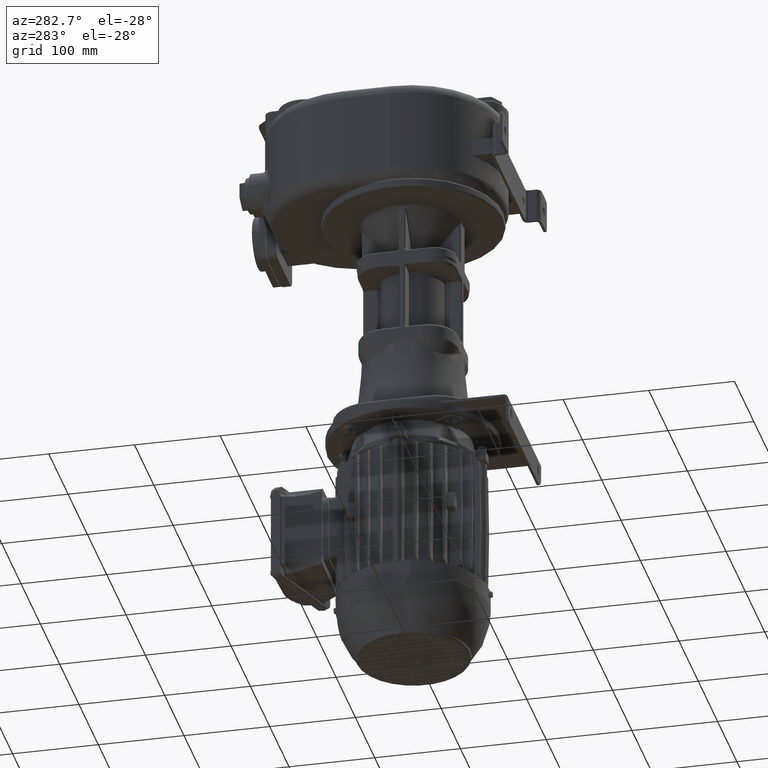
[diagram: clean part render]
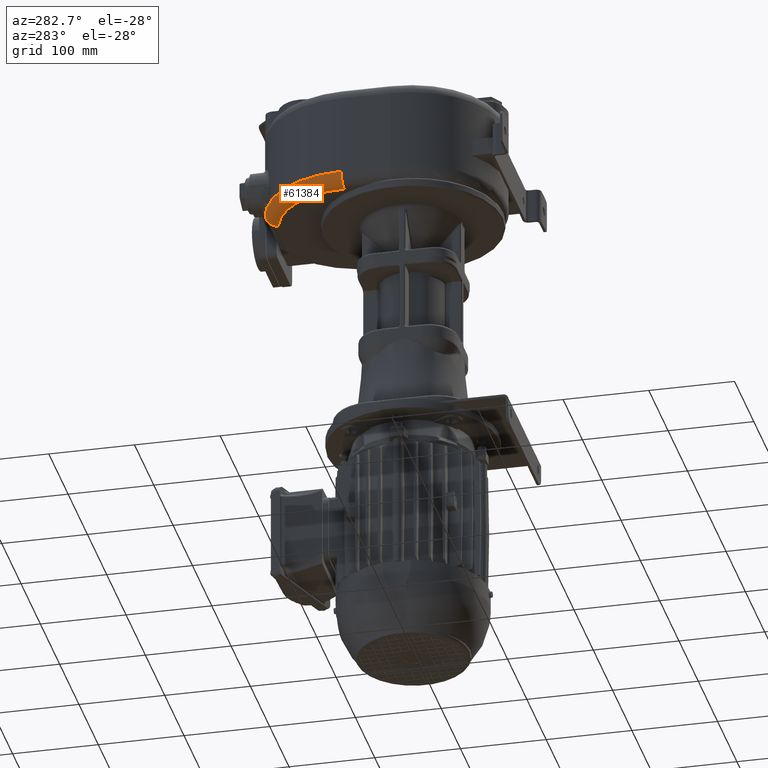
[diagram: same view with one face highlighted and labeled with its STEP entity id]
A machine part, auxiliary view. The second image highlights one B-rep face of the part: STEP entity #61384.
In plain terms, the highlighted toroidal blend (fillet) surface has major radius 96 mm and minor (blend) radius 15 mm.
Its self-contained STEP definition (entity closure, byte-faithful):
#11728=CARTESIAN_POINT('',(0.E0,1.690800320256E2,-5.E1));
#11729=DIRECTION('',(0.E0,0.E0,-1.E0));
#11730=DIRECTION('',(-1.E0,0.E0,0.E0));
#11731=AXIS2_PLACEMENT_3D('',#11728,#11729,#11730);
#13047=CARTESIAN_POINT('',(0.E0,1.690800320256E2,-3.5E1));
#13048=DIRECTION('',(0.E0,0.E0,-1.E0));
#13049=DIRECTION('',(-1.E0,0.E0,0.E0));
#13050=AXIS2_PLACEMENT_3D('',#13047,#13048,#13049);
#13104=CARTESIAN_POINT('',(-2.688105618029E1,2.764335384161E2,
-3.813934075799E1));
#13105=CARTESIAN_POINT('',(-2.722068018488E1,2.763460342075E2,
-3.815053207521E1));
#13106=CARTESIAN_POINT('',(-2.790077634864E1,2.761695560446E2,
-3.816276001671E1));
#13107=CARTESIAN_POINT('',(-2.892504146546E1,2.759001513657E2,
-3.815080409032E1));
#13108=CARTESIAN_POINT('',(-2.994912429736E1,2.756270609011E2,
-3.810807735722E1));
#13109=CARTESIAN_POINT('',(-3.097169924856E1,2.753503817019E2,
-3.803458225394E1));
#13110=CARTESIAN_POINT('',(-3.198975413900E1,2.750704948583E2,
-3.793048132271E1));
#13111=CARTESIAN_POINT('',(-3.300094258471E1,2.747874889685E2,
-3.779601978615E1));
#13112=CARTESIAN_POINT('',(-3.400214525095E1,2.745015266640E2,
-3.763180863173E1));
#13113=CARTESIAN_POINT('',(-3.499011816672E1,2.742127119762E2,
-3.743881287782E1));
#13114=CARTESIAN_POINT('',(-3.596186144826E1,2.739210499724E2,
-3.721811583581E1));
#13115=CARTESIAN_POINT('',(-3.691599942445E1,2.736259950723E2,
-3.697073564841E1));
#13116=CARTESIAN_POINT('',(-3.785110412742E1,2.733269577339E2,
-3.669786125730E1));
#13117=CARTESIAN_POINT('',(-3.876552996696E1,2.730234225842E2,
-3.640071094162E1));
#13118=CARTESIAN_POINT('',(-3.965745728045E1,2.727149381333E2,
-3.608081108247E1));
#13119=CARTESIAN_POINT('',(-4.052519140474E1,2.724010695233E2,
-3.573993858413E1));
#13120=CARTESIAN_POINT('',(-4.136723580597E1,2.720814112212E2,
-3.537974596290E1));
#13121=CARTESIAN_POINT('',(-4.191011781321E1,2.718643915260E2,
-3.512834654465E1));
#13122=CARTESIAN_POINT('',(-4.217704383360E1,2.717547432452E2,
-3.500000000002E1));
#13124=CARTESIAN_POINT('',(-9.6E1,1.690800320256E2,-3.5E1));
#13125=DIRECTION('',(0.E0,1.E0,0.E0));
#13126=DIRECTION('',(0.E0,0.E0,-1.E0));
#13127=AXIS2_PLACEMENT_3D('',#13124,#13125,#13126);
#13137=CARTESIAN_POINT('',(-2.688105618029E1,2.764335384161E2,
-3.813934075799E1));
#13139=CARTESIAN_POINT('',(-2.688105618029E1,2.764335384161E2,
-3.813934075799E1));
#13140=CARTESIAN_POINT('',(-2.687384116048E1,2.763946918702E2,
-3.832360887442E1));
#13141=CARTESIAN_POINT('',(-2.685812766535E1,2.763101183466E2,
-3.869070545340E1));
#13142=CARTESIAN_POINT('',(-2.683076659554E1,2.761628538303E2,
-3.923645602963E1));
#13143=CARTESIAN_POINT('',(-2.679964102812E1,2.759953505958E2,
-3.977635203677E1));
#13144=CARTESIAN_POINT('',(-2.676478617906E1,2.758078743894E2,
-4.030955022330E1));
#13145=CARTESIAN_POINT('',(-2.672623588445E1,2.756007168972E2,
-4.083519765541E1));
#13146=CARTESIAN_POINT('',(-2.668400482390E1,2.753742326247E2,
-4.135244690060E1));
#13147=CARTESIAN_POINT('',(-2.663819401361E1,2.751286676909E2,
-4.186071516250E1));
#13148=CARTESIAN_POINT('',(-2.658884609532E1,2.748642529579E2,
-4.235947597860E1));
#13149=CARTESIAN_POINT('',(-2.653600030530E1,2.745812886496E2,
-4.284807974494E1));
#13150=CARTESIAN_POINT('',(-2.647972125561E1,2.742802789731E2,
-4.332560176989E1));
#13151=CARTESIAN_POINT('',(-2.642008292139E1,2.739617836910E2,
-4.379116337682E1));
#13152=CARTESIAN_POINT('',(-2.635709597797E1,2.736262725607E2,
-4.424412439806E1));
#13153=CARTESIAN_POINT('',(-2.629092214501E1,2.732741169693E2,
-4.468395248460E1));
#13154=CARTESIAN_POINT('',(-2.622164609467E1,2.729057576188E2,
-4.511007085348E1));
#13155=CARTESIAN_POINT('',(-2.614936180460E1,2.725218366343E2,
-4.552172844782E1));
#13156=CARTESIAN_POINT('',(-2.607416829958E1,2.721230604549E2,
-4.591819932175E1));
#13157=CARTESIAN_POINT('',(-2.599614358274E1,2.717100202683E2,
-4.629894327239E1));
#13158=CARTESIAN_POINT('',(-2.591530007099E1,2.712831992109E2,
-4.666355339146E1));
#13159=CARTESIAN_POINT('',(-2.583180746195E1,2.708430673212E2,
-4.701160296080E1));
#13160=CARTESIAN_POINT('',(-2.574579148256E1,2.703902510375E2,
-4.734257782326E1));
#13161=CARTESIAN_POINT('',(-2.565734142247E1,2.699254102576E2,
-4.765598840878E1));
#13162=CARTESIAN_POINT('',(-2.556655521698E1,2.694492486835E2,
-4.795135642583E1));
#13163=CARTESIAN_POINT('',(-2.547354807328E1,2.689625180797E2,
-4.822821771646E1));
#13164=CARTESIAN_POINT('',(-2.537838829438E1,2.684660249301E2,
-4.848613913972E1));
#13165=CARTESIAN_POINT('',(-2.528129424457E1,2.679602279540E2,
-4.872487088940E1));
#13166=CARTESIAN_POINT('',(-2.518238084814E1,2.674455437753E2,
-4.894417703910E1));
#13167=CARTESIAN_POINT('',(-2.508170570269E1,2.669226180851E2,
-4.914372320509E1));
#13168=CARTESIAN_POINT('',(-2.497946131881E1,2.663927127702E2,
-4.932299643720E1));
#13169=CARTESIAN_POINT('',(-2.487584938182E1,2.658571357731E2,
-4.948160158175E1));
#13170=CARTESIAN_POINT('',(-2.477093298904E1,2.653166823717E2,
-4.961938539477E1));
#13171=CARTESIAN_POINT('',(-2.466486097300E1,2.647718300740E2,
-4.973627655601E1));
#13172=CARTESIAN_POINT('',(-2.455779708050E1,2.642228954347E2,
-4.983220347444E1));
#13173=CARTESIAN_POINT('',(-2.444992489540E1,2.636705601321E2,
-4.990702393697E1));
#13174=CARTESIAN_POINT('',(-2.434125299902E1,2.631155195183E2,
-4.996058549245E1));
#13175=CARTESIAN_POINT('',(-2.423251801143E1,2.625583688394E2,
-4.999286614846E1));
#13176=CARTESIAN_POINT('',(-2.415864509923E1,2.621862337640E2,
-4.999990083726E1));
#13177=CARTESIAN_POINT('',(-2.412212118823E1,2.620000000007E2,-5.E1));
#38367=CARTESIAN_POINT('',(-2.412212118823E1,2.620000000007E2,-5.E1));
#38369=VERTEX_POINT('',#38367);
#38381=CARTESIAN_POINT('',(-1.11E2,1.690800320256E2,-3.5E1));
#38382=VERTEX_POINT('',#38381);
#38383=CARTESIAN_POINT('',(-9.6E1,1.690800320256E2,-5.E1));
#38384=VERTEX_POINT('',#38383);
#38427=VERTEX_POINT('',#13137);
#38429=VERTEX_POINT('',#13122);
#61371=CARTESIAN_POINT('',(0.E0,1.690800320256E2,-3.5E1));
#61372=DIRECTION('',(0.E0,0.E0,-1.E0));
#61373=DIRECTION('',(7.873481849171E-1,-6.165085852669E-1,0.E0));
#61374=AXIS2_PLACEMENT_3D('',#61371,#61372,#61373);
#61375=TOROIDAL_SURFACE('',#61374,9.6E1,1.5E1);
#61376=ORIENTED_EDGE('',*,*,#61361,.T.);
#61377=ORIENTED_EDGE('',*,*,#61176,.F.);
#61378=ORIENTED_EDGE('',*,*,#59719,.F.);
#61379=ORIENTED_EDGE('',*,*,#59741,.T.);
#61381=ORIENTED_EDGE('',*,*,#61380,.F.);
#61382=EDGE_LOOP('',(#61376,#61377,#61378,#61379,#61381));
#61383=FACE_OUTER_BOUND('',#61382,.F.);
#61384=ADVANCED_FACE('',(#61383),#61375,.T.);
#11732=CIRCLE('',#11731,9.6E1);
#13051=CIRCLE('',#13050,1.11E2);
#13123=B_SPLINE_CURVE_WITH_KNOTS('',3,(#13104,#13105,#13106,#13107,#13108,
#13109,#13110,#13111,#13112,#13113,#13114,#13115,#13116,#13117,#13118,#13119,
#13120,#13121,#13122),.UNSPECIFIED.,.F.,.F.,(4,1,1,1,1,1,1,1,1,1,1,1,1,1,1,1,4),
(0.E0,6.25E-2,1.25E-1,1.875E-1,2.5E-1,3.125E-1,3.75E-1,4.375E-1,5.E-1,5.625E-1,
6.25E-1,6.875E-1,7.5E-1,8.125E-1,8.75E-1,9.375E-1,1.E0),.UNSPECIFIED.);
#13128=CIRCLE('',#13127,1.5E1);
#13178=B_SPLINE_CURVE_WITH_KNOTS('',3,(#13139,#13140,#13141,#13142,#13143,
#13144,#13145,#13146,#13147,#13148,#13149,#13150,#13151,#13152,#13153,#13154,
#13155,#13156,#13157,#13158,#13159,#13160,#13161,#13162,#13163,#13164,#13165,
#13166,#13167,#13168,#13169,#13170,#13171,#13172,#13173,#13174,#13175,#13176,
#13177),.UNSPECIFIED.,.F.,.F.,(4,1,1,1,1,1,1,1,1,1,1,1,1,1,1,1,1,1,1,1,1,1,1,1,
1,1,1,1,1,1,1,1,1,1,1,1,4),(0.E0,2.777777777778E-2,5.555555555556E-2,
8.333333333333E-2,1.111111111111E-1,1.388888888889E-1,1.666666666667E-1,
1.944444444444E-1,2.222222222222E-1,2.5E-1,2.777777777778E-1,3.055555555556E-1,
3.333333333333E-1,3.611111111111E-1,3.888888888889E-1,4.166666666667E-1,
4.444444444444E-1,4.722222222222E-1,5.E-1,5.277777777778E-1,5.555555555556E-1,
5.833333333333E-1,6.111111111111E-1,6.388888888889E-1,6.666666666667E-1,
6.944444444444E-1,7.222222222222E-1,7.5E-1,7.777777777778E-1,8.055555555556E-1,
8.333333333333E-1,8.611111111111E-1,8.888888888889E-1,9.166666666667E-1,
9.444444444444E-1,9.722222222222E-1,1.E0),.UNSPECIFIED.);
#59719=EDGE_CURVE('',#38384,#38382,#13128,.T.);
#59741=EDGE_CURVE('',#38384,#38369,#11732,.T.);
#61176=EDGE_CURVE('',#38382,#38429,#13051,.T.);
#61361=EDGE_CURVE('',#38427,#38429,#13123,.T.);
#61380=EDGE_CURVE('',#38427,#38369,#13178,.T.);